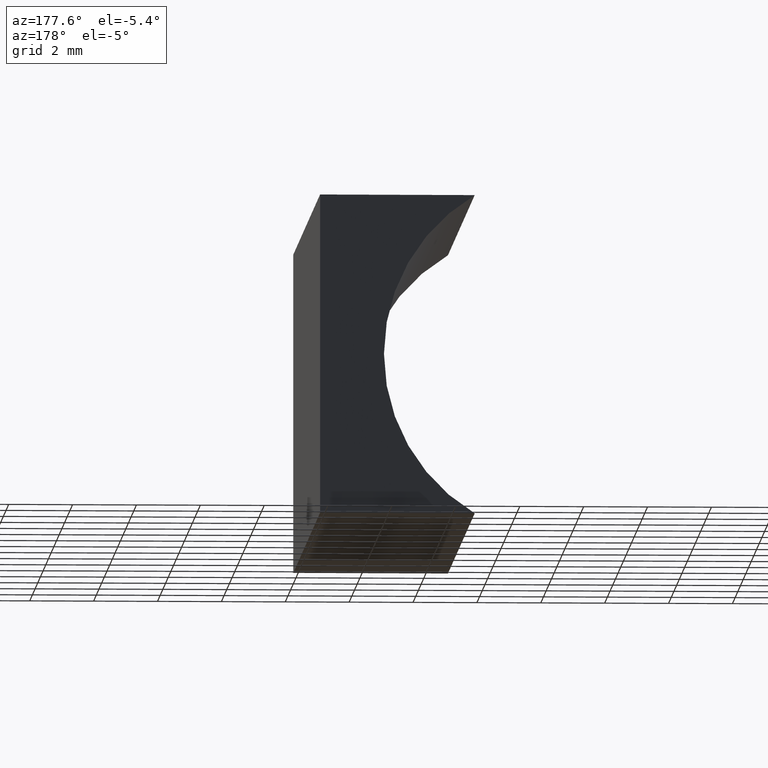
[diagram: clean part render]
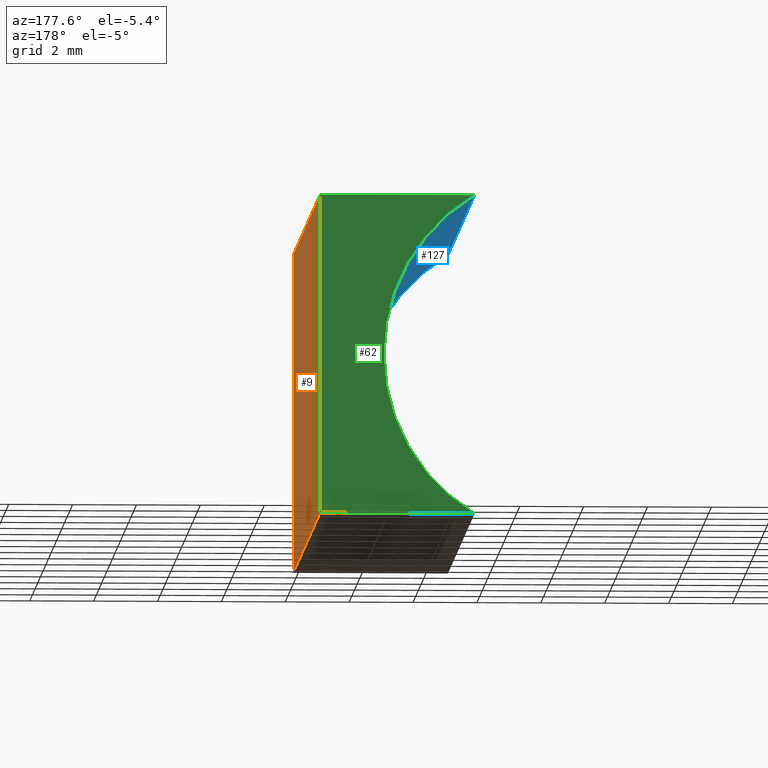
[diagram: same view with three faces highlighted in distinct colors, each labeled with its STEP entity id]
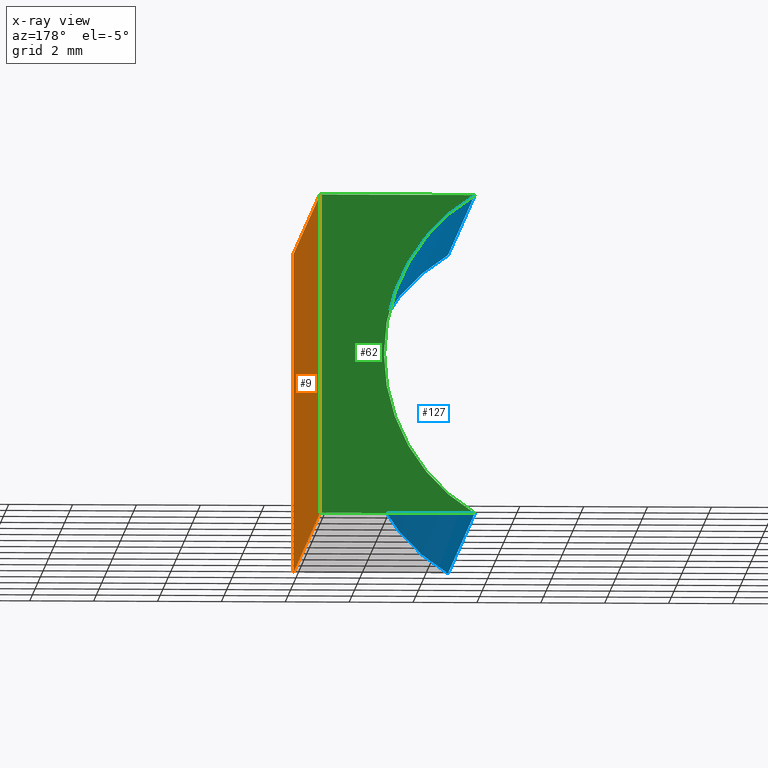
[diagram: x-ray of the same camera — body ghosted, the three highlighted faces saturated]
A machine part, auxiliary view with three faces highlighted in distinct colors.
The next image is the same camera in x-ray (body ghosted, the three faces saturated) — at least one of them is partly hidden behind the body in this view.
Their STEP definitions:

[orange] entity #9 — the highlighted planar face has unit normal (-1, 0, 0).
#4 = LINE ( 'NONE', #170, #13 ) ;
#9 = ADVANCED_FACE ( 'NONE', ( #175 ), #50, .F. ) ;
#13 = VECTOR ( 'NONE', #94, 1000.000000000000000 ) ;
#21 = VERTEX_POINT ( 'NONE', #65 ) ;
#25 = CARTESIAN_POINT ( 'NONE',  ( 6.123233995736766300E-016, 0.0000000000000000000, 10.00000000000000000 ) ) ;
#31 = DIRECTION ( 'NONE',  ( -6.123233995736766000E-017, -0.0000000000000000000, -1.000000000000000000 ) ) ;
#32 = CARTESIAN_POINT ( 'NONE',  ( 6.123233995736766300E-016, 20.00000000000000000, 10.00000000000000000 ) ) ;
#46 = VERTEX_POINT ( 'NONE', #25 ) ;
#47 = LINE ( 'NONE', #32, #168 ) ;
#48 = EDGE_CURVE ( 'NONE', #118, #46, #47, .T. ) ;
#50 = PLANE ( 'NONE',  #187 ) ;
#58 = EDGE_CURVE ( 'NONE', #118, #21, #4, .T. ) ;
#60 = DIRECTION ( 'NONE',  ( -0.0000000000000000000, -1.000000000000000000, -0.0000000000000000000 ) ) ;
#64 = VECTOR ( 'NONE', #31, 1000.000000000000000 ) ;
#65 = CARTESIAN_POINT ( 'NONE',  ( 0.0000000000000000000, 20.00000000000000000, 0.0000000000000000000 ) ) ;
#88 = CARTESIAN_POINT ( 'NONE',  ( 0.0000000000000000000, 20.00000000000000000, 0.0000000000000000000 ) ) ;
#92 = CARTESIAN_POINT ( 'NONE',  ( 6.123233995736766300E-016, 20.00000000000000000, 10.00000000000000000 ) ) ;
#94 = DIRECTION ( 'NONE',  ( -6.123233995736766000E-017, -0.0000000000000000000, -1.000000000000000000 ) ) ;
#99 = ORIENTED_EDGE ( 'NONE', *, *, #58, .F. ) ;
#110 = DIRECTION ( 'NONE',  ( -0.0000000000000000000, -1.000000000000000000, -0.0000000000000000000 ) ) ;
#116 = CARTESIAN_POINT ( 'NONE',  ( 0.0000000000000000000, 0.0000000000000000000, 0.0000000000000000000 ) ) ;
#118 = VERTEX_POINT ( 'NONE', #92 ) ;
#121 = CARTESIAN_POINT ( 'NONE',  ( 0.0000000000000000000, 0.0000000000000000000, 0.0000000000000000000 ) ) ;
#130 = EDGE_CURVE ( 'NONE', #21, #201, #134, .T. ) ;
#131 = DIRECTION ( 'NONE',  ( -1.000000000000000000, 0.0000000000000000000, 6.123233995736766000E-017 ) ) ;
#134 = LINE ( 'NONE', #151, #138 ) ;
#137 = DIRECTION ( 'NONE',  ( 6.123233995736766000E-017, 0.0000000000000000000, 1.000000000000000000 ) ) ;
#138 = VECTOR ( 'NONE', #60, 1000.000000000000000 ) ;
#151 = CARTESIAN_POINT ( 'NONE',  ( 0.0000000000000000000, 20.00000000000000000, 0.0000000000000000000 ) ) ;
#152 = LINE ( 'NONE', #121, #64 ) ;
#153 = EDGE_LOOP ( 'NONE', ( #195, #198, #99, #182 ) ) ;
#157 = EDGE_CURVE ( 'NONE', #46, #201, #152, .T. ) ;
#168 = VECTOR ( 'NONE', #110, 1000.000000000000000 ) ;
#170 = CARTESIAN_POINT ( 'NONE',  ( 0.0000000000000000000, 20.00000000000000000, 0.0000000000000000000 ) ) ;
#175 = FACE_OUTER_BOUND ( 'NONE', #153, .T. ) ;
#182 = ORIENTED_EDGE ( 'NONE', *, *, #48, .T. ) ;
#187 = AXIS2_PLACEMENT_3D ( 'NONE', #88, #131, #137 ) ;
#195 = ORIENTED_EDGE ( 'NONE', *, *, #157, .T. ) ;
#198 = ORIENTED_EDGE ( 'NONE', *, *, #130, .F. ) ;
#201 = VERTEX_POINT ( 'NONE', #116 ) ;

[blue] entity #127 — the highlighted cylindrical surface (partial cylindrical patch) has radius 5.82 mm, axis along (-0, -1, -0).
#2 = ORIENTED_EDGE ( 'NONE', *, *, #113, .T. ) ;
#10 = FACE_OUTER_BOUND ( 'NONE', #147, .T. ) ;
#11 = DIRECTION ( 'NONE',  ( -0.0000000000000000000, -1.000000000000000000, -0.0000000000000000000 ) ) ;
#12 = DIRECTION ( 'NONE',  ( -0.0000000000000000000, -1.000000000000000000, -0.0000000000000000000 ) ) ;
#22 = CARTESIAN_POINT ( 'NONE',  ( -7.819999999999993200, 20.00000000000000000, 5.000000000000001800 ) ) ;
#23 = ORIENTED_EDGE ( 'NONE', *, *, #73, .T. ) ;
#24 = VERTEX_POINT ( 'NONE', #78 ) ;
#26 = DIRECTION ( 'NONE',  ( 0.0000000000000000000, 0.0000000000000000000, -1.000000000000000000 ) ) ;
#28 = AXIS2_PLACEMENT_3D ( 'NONE', #176, #82, #39 ) ;
#35 = AXIS2_PLACEMENT_3D ( 'NONE', #192, #12, #26 ) ;
#38 = DIRECTION ( 'NONE',  ( 0.0000000000000000000, 0.0000000000000000000, 1.000000000000000000 ) ) ;
#39 = DIRECTION ( 'NONE',  ( 0.0000000000000000000, 0.0000000000000000000, 1.000000000000000000 ) ) ;
#51 = ORIENTED_EDGE ( 'NONE', *, *, #63, .F. ) ;
#59 = DIRECTION ( 'NONE',  ( -0.0000000000000000000, -1.000000000000000000, -0.0000000000000000000 ) ) ;
#63 = EDGE_CURVE ( 'NONE', #169, #165, #188, .T. ) ;
#72 = DIRECTION ( 'NONE',  ( -0.0000000000000000000, -1.000000000000000000, -0.0000000000000000000 ) ) ;
#73 = EDGE_CURVE ( 'NONE', #169, #76, #93, .T. ) ;
#76 = VERTEX_POINT ( 'NONE', #166 ) ;
#78 = CARTESIAN_POINT ( 'NONE',  ( -4.841342584317565000, 0.0000000000000000000, 9.999999999999998200 ) ) ;
#82 = DIRECTION ( 'NONE',  ( -0.0000000000000000000, -1.000000000000000000, -0.0000000000000000000 ) ) ;
#84 = CARTESIAN_POINT ( 'NONE',  ( -4.841342584317566800, 20.00000000000000000, 2.602085213965210600E-015 ) ) ;
#87 = CIRCLE ( 'NONE', #28, 5.819999999999991400 ) ;
#93 = LINE ( 'NONE', #163, #144 ) ;
#96 = CARTESIAN_POINT ( 'NONE',  ( -4.841342584317565000, 20.00000000000000000, 9.999999999999998200 ) ) ;
#112 = VECTOR ( 'NONE', #59, 1000.000000000000000 ) ;
#113 = EDGE_CURVE ( 'NONE', #76, #24, #87, .T. ) ;
#127 = ADVANCED_FACE ( 'NONE', ( #10 ), #181, .F. ) ;
#135 = EDGE_CURVE ( 'NONE', #165, #24, #200, .T. ) ;
#136 = ORIENTED_EDGE ( 'NONE', *, *, #135, .F. ) ;
#144 = VECTOR ( 'NONE', #72, 1000.000000000000000 ) ;
#147 = EDGE_LOOP ( 'NONE', ( #2, #136, #51, #23 ) ) ;
#163 = CARTESIAN_POINT ( 'NONE',  ( -4.841342584317566800, 20.00000000000000000, 2.602085213965210600E-015 ) ) ;
#165 = VERTEX_POINT ( 'NONE', #96 ) ;
#166 = CARTESIAN_POINT ( 'NONE',  ( -4.841342584317566800, 0.0000000000000000000, 2.602085213965210600E-015 ) ) ;
#169 = VERTEX_POINT ( 'NONE', #84 ) ;
#172 = CARTESIAN_POINT ( 'NONE',  ( -4.841342584317565000, 20.00000000000000000, 9.999999999999998200 ) ) ;
#176 = CARTESIAN_POINT ( 'NONE',  ( -7.819999999999993200, 0.0000000000000000000, 5.000000000000001800 ) ) ;
#181 = CYLINDRICAL_SURFACE ( 'NONE', #35, 5.819999999999991400 ) ;
#188 = CIRCLE ( 'NONE', #190, 5.819999999999991400 ) ;
#190 = AXIS2_PLACEMENT_3D ( 'NONE', #22, #11, #38 ) ;
#192 = CARTESIAN_POINT ( 'NONE',  ( -7.819999999999993200, 20.00000000000000000, 5.000000000000001800 ) ) ;
#200 = LINE ( 'NONE', #172, #112 ) ;

[green] entity #62 — the highlighted planar face has unit normal (0, 1, 0).
#4 = LINE ( 'NONE', #170, #13 ) ;
#7 = DIRECTION ( 'NONE',  ( 0.0000000000000000000, 1.000000000000000000, 0.0000000000000000000 ) ) ;
#11 = DIRECTION ( 'NONE',  ( -0.0000000000000000000, -1.000000000000000000, -0.0000000000000000000 ) ) ;
#13 = VECTOR ( 'NONE', #94, 1000.000000000000000 ) ;
#15 = AXIS2_PLACEMENT_3D ( 'NONE', #132, #7, #120 ) ;
#21 = VERTEX_POINT ( 'NONE', #65 ) ;
#22 = CARTESIAN_POINT ( 'NONE',  ( -7.819999999999993200, 20.00000000000000000, 5.000000000000001800 ) ) ;
#36 = ORIENTED_EDGE ( 'NONE', *, *, #63, .T. ) ;
#38 = DIRECTION ( 'NONE',  ( 0.0000000000000000000, 0.0000000000000000000, 1.000000000000000000 ) ) ;
#49 = LINE ( 'NONE', #204, #159 ) ;
#55 = CARTESIAN_POINT ( 'NONE',  ( 6.123233995736766300E-016, 20.00000000000000000, 10.00000000000000000 ) ) ;
#58 = EDGE_CURVE ( 'NONE', #118, #21, #4, .T. ) ;
#62 = ADVANCED_FACE ( 'NONE', ( #85 ), #154, .T. ) ;
#63 = EDGE_CURVE ( 'NONE', #169, #165, #188, .T. ) ;
#65 = CARTESIAN_POINT ( 'NONE',  ( 0.0000000000000000000, 20.00000000000000000, 0.0000000000000000000 ) ) ;
#79 = ORIENTED_EDGE ( 'NONE', *, *, #58, .T. ) ;
#84 = CARTESIAN_POINT ( 'NONE',  ( -4.841342584317566800, 20.00000000000000000, 2.602085213965210600E-015 ) ) ;
#85 = FACE_OUTER_BOUND ( 'NONE', #133, .T. ) ;
#89 = LINE ( 'NONE', #55, #177 ) ;
#92 = CARTESIAN_POINT ( 'NONE',  ( 6.123233995736766300E-016, 20.00000000000000000, 10.00000000000000000 ) ) ;
#94 = DIRECTION ( 'NONE',  ( -6.123233995736766000E-017, -0.0000000000000000000, -1.000000000000000000 ) ) ;
#95 = ORIENTED_EDGE ( 'NONE', *, *, #142, .T. ) ;
#96 = CARTESIAN_POINT ( 'NONE',  ( -4.841342584317565000, 20.00000000000000000, 9.999999999999998200 ) ) ;
#104 = DIRECTION ( 'NONE',  ( -1.000000000000000000, 0.0000000000000000000, 3.583145472076385000E-016 ) ) ;
#118 = VERTEX_POINT ( 'NONE', #92 ) ;
#119 = EDGE_CURVE ( 'NONE', #165, #118, #89, .T. ) ;
#120 = DIRECTION ( 'NONE',  ( 0.0000000000000000000, -0.0000000000000000000, 1.000000000000000000 ) ) ;
#124 = DIRECTION ( 'NONE',  ( 1.000000000000000000, -0.0000000000000000000, 3.583145472076385000E-016 ) ) ;
#132 = CARTESIAN_POINT ( 'NONE',  ( -7.819999999999993200, 20.00000000000000000, 5.000000000000001800 ) ) ;
#133 = EDGE_LOOP ( 'NONE', ( #95, #36, #160, #79 ) ) ;
#142 = EDGE_CURVE ( 'NONE', #21, #169, #49, .T. ) ;
#154 = PLANE ( 'NONE',  #15 ) ;
#159 = VECTOR ( 'NONE', #104, 1000.000000000000000 ) ;
#160 = ORIENTED_EDGE ( 'NONE', *, *, #119, .T. ) ;
#165 = VERTEX_POINT ( 'NONE', #96 ) ;
#169 = VERTEX_POINT ( 'NONE', #84 ) ;
#170 = CARTESIAN_POINT ( 'NONE',  ( 0.0000000000000000000, 20.00000000000000000, 0.0000000000000000000 ) ) ;
#177 = VECTOR ( 'NONE', #124, 1000.000000000000000 ) ;
#188 = CIRCLE ( 'NONE', #190, 5.819999999999991400 ) ;
#190 = AXIS2_PLACEMENT_3D ( 'NONE', #22, #11, #38 ) ;
#204 = CARTESIAN_POINT ( 'NONE',  ( 0.0000000000000000000, 20.00000000000000000, 0.0000000000000000000 ) ) ;